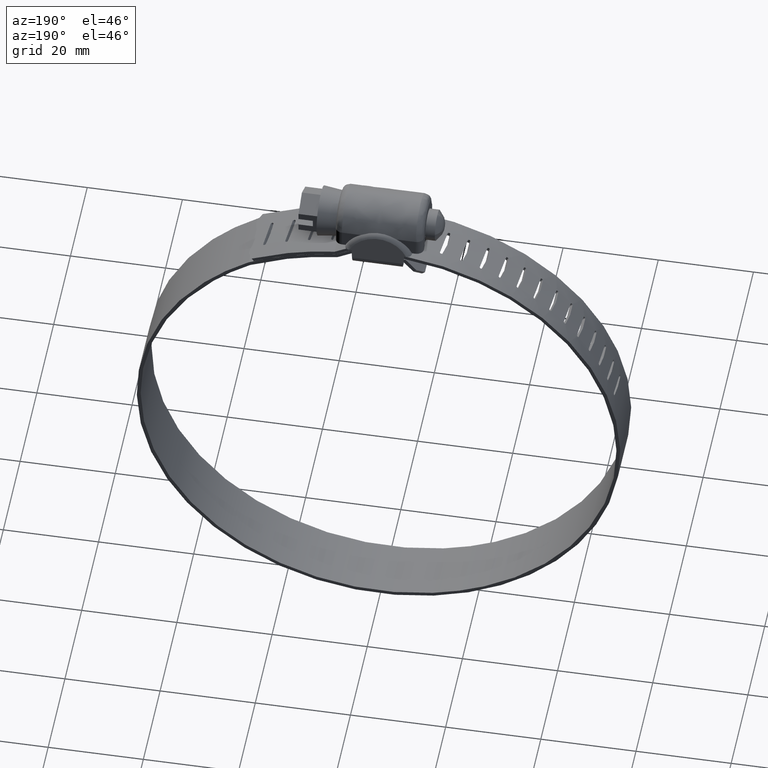
[diagram: clean part render]
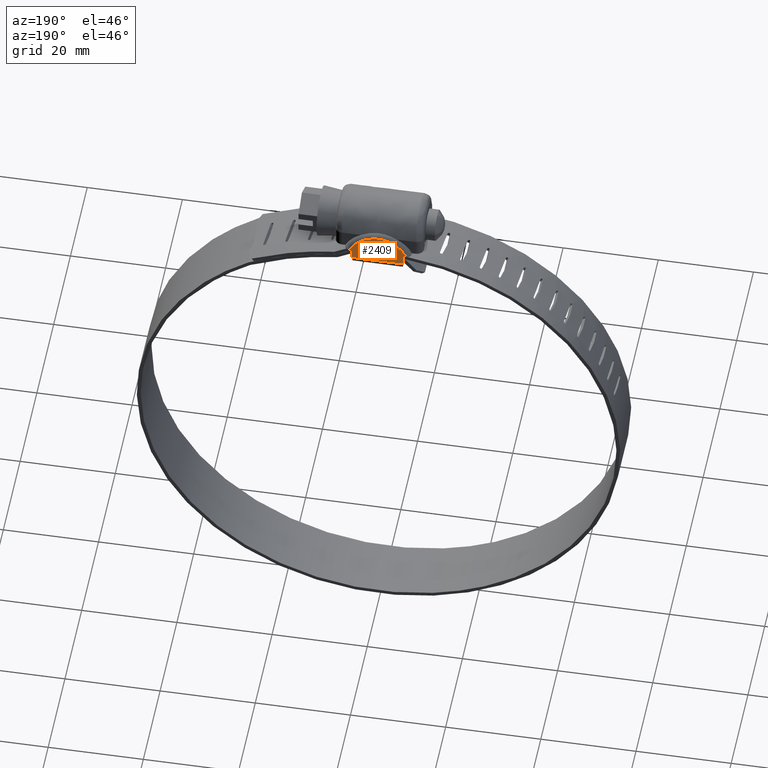
[diagram: same view with one face highlighted and labeled with its STEP entity id]
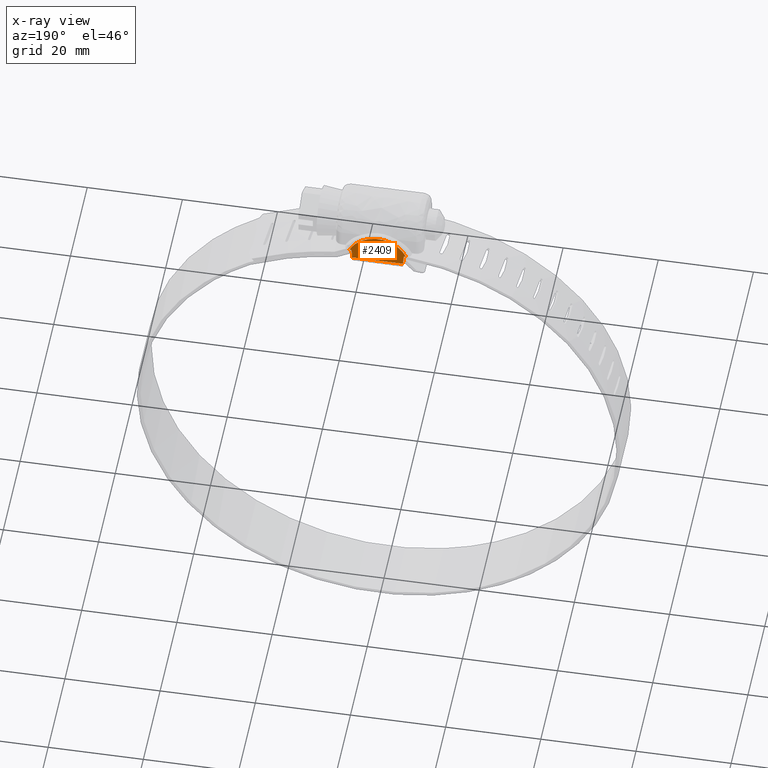
[diagram: x-ray of the same camera — body ghosted, the highlighted face saturated]
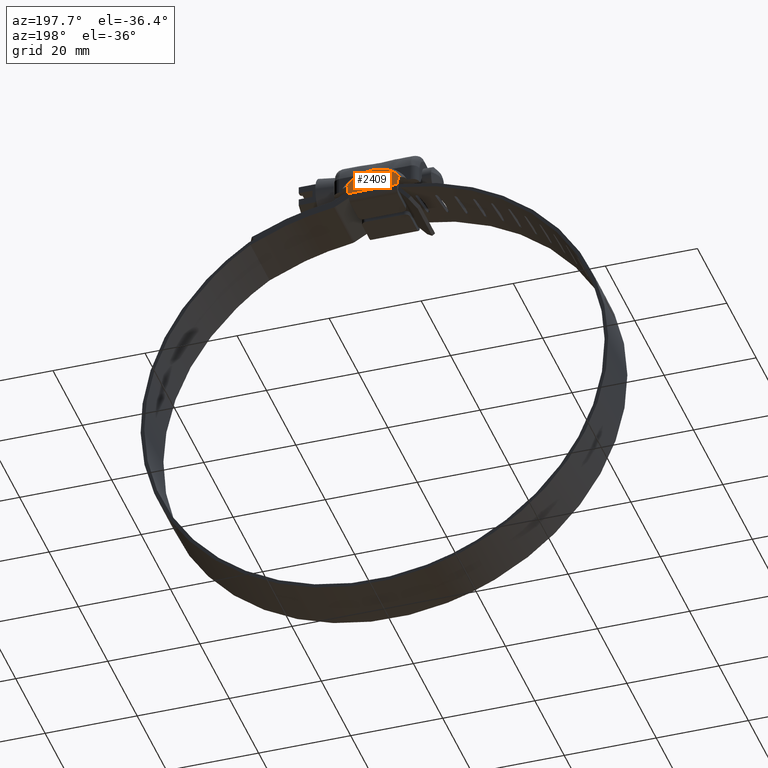
[diagram: same view with one face highlighted and labeled with its STEP entity id]
A machine part, auxiliary view. The second image highlights one B-rep face of the part: STEP entity #2409.
The next image is the same camera in x-ray: the body ghosted, the highlighted face saturated — about 0% of this face is hidden behind the body in this view.
A second angle (auxiliary view) of the same face is appended — the face is thin or edge-on in the first view.
In plain terms, the highlighted face is a freeform B-spline surface patch.
Its self-contained STEP definition (entity closure, byte-faithful):
#1443=CARTESIAN_POINT('',(-5.344276520702330,7.807549492446740,11.208401248428160));
#1444=VERTEX_POINT('',#1443);
#1459=CARTESIAN_POINT('',(5.344276520702420,7.807549492446690,11.208401248428119));
#1460=VERTEX_POINT('',#1459);
#1461=CARTESIAN_POINT('',(5.344276520702420,7.807549492446690,11.208401248428119));
#1462=CARTESIAN_POINT('',(-5.344276520702330,7.807549492446740,11.208401248428160));
#1463=QUASI_UNIFORM_CURVE('',1,(#1461,#1462),.UNSPECIFIED.,.F.,.U.);
#1464=EDGE_CURVE('',#1460,#1444,#1463,.T.);
#1840=CARTESIAN_POINT('',(5.964274546191691,7.515887096035680,13.077083000000201));
#1841=VERTEX_POINT('',#1840);
#1867=CARTESIAN_POINT('',(-5.964274546191691,7.515887096035680,13.077083000000201));
#1868=VERTEX_POINT('',#1867);
#1869=CARTESIAN_POINT('',(-5.964274546191691,7.515887096035680,13.077083000000201));
#1870=CARTESIAN_POINT('',(-4.101574888512248,6.945540499392355,16.731295165618835));
#1871=CARTESIAN_POINT('',(2.153124E-015,6.945540499392355,16.731295165618839));
#1872=CARTESIAN_POINT('',(4.101574888512252,6.945540499392355,16.731295165618835));
#1873=CARTESIAN_POINT('',(5.964274546191691,7.515887096035680,13.077083000000201));
#1881=(BOUNDED_CURVE()B_SPLINE_CURVE(2,(#1869,#1870,#1871,#1872,#1873),.UNSPECIFIED.,.F.,.U.)B_SPLINE_CURVE_WITH_KNOTS((3,2,3),(0.0,0.500000000000000,1.0),.UNSPECIFIED.)CURVE()GEOMETRIC_REPRESENTATION_ITEM()RATIONAL_B_SPLINE_CURVE((1.0,0.852684743861974,1.0,0.852684743861974,1.0))REPRESENTATION_ITEM(''));
#1882=EDGE_CURVE('',#1868,#1841,#1881,.T.);
#2376=CARTESIAN_POINT('',(-6.560105438259712,6.902483235858929,17.007163167896639));
#2377=CARTESIAN_POINT('',(-6.560105438259712,7.850606794514998,10.932532999257729));
#2378=CARTESIAN_POINT('',(6.560105864857871,6.902483235858929,17.007163167896639));
#2379=CARTESIAN_POINT('',(6.560105864857871,7.850606794514998,10.932532999257729));
#2380=B_SPLINE_SURFACE_WITH_KNOTS('',1,1,((#2376,#2378),(#2377,#2379)),.UNSPECIFIED.,.F.,.F.,.U.,(2,2),(2,2),(0.0,6.148176149738776),(0.0,13.120211303117580),.UNSPECIFIED.);
#2381=CARTESIAN_POINT('',(5.500000000000100,7.515887096035680,13.077083000000201));
#2382=VERTEX_POINT('',#2381);
#2383=CARTESIAN_POINT('',(5.344276520702420,7.807549492446690,11.208401248428119));
#2384=CARTESIAN_POINT('',(5.500000000000100,7.515887096035680,13.077083000000201));
#2385=QUASI_UNIFORM_CURVE('',1,(#2383,#2384),.UNSPECIFIED.,.F.,.U.);
#2386=EDGE_CURVE('',#1460,#2382,#2385,.T.);
#2387=ORIENTED_EDGE('',*,*,#2386,.F.);
#2388=ORIENTED_EDGE('',*,*,#1464,.T.);
#2389=CARTESIAN_POINT('',(-5.500000000000000,7.515887096035680,13.077083000000201));
#2390=VERTEX_POINT('',#2389);
#2391=CARTESIAN_POINT('',(-5.500000000000000,7.515887096035680,13.077083000000201));
#2392=CARTESIAN_POINT('',(-5.344276520702330,7.807549492446740,11.208401248428160));
#2393=QUASI_UNIFORM_CURVE('',1,(#2391,#2392),.UNSPECIFIED.,.F.,.U.);
#2394=EDGE_CURVE('',#2390,#1444,#2393,.T.);
#2395=ORIENTED_EDGE('',*,*,#2394,.F.);
#2396=CARTESIAN_POINT('',(-5.964274546191691,7.515887096035680,13.077083000000201));
#2397=CARTESIAN_POINT('',(-5.500000000000000,7.515887096035680,13.077083000000201));
#2398=QUASI_UNIFORM_CURVE('',1,(#2396,#2397),.UNSPECIFIED.,.F.,.U.);
#2399=EDGE_CURVE('',#1868,#2390,#2398,.T.);
#2400=ORIENTED_EDGE('',*,*,#2399,.F.);
#2401=ORIENTED_EDGE('',*,*,#1882,.T.);
#2402=CARTESIAN_POINT('',(5.500000000000100,7.515887096035680,13.077083000000201));
#2403=CARTESIAN_POINT('',(5.964274546191691,7.515887096035680,13.077083000000201));
#2404=QUASI_UNIFORM_CURVE('',1,(#2402,#2403),.UNSPECIFIED.,.F.,.U.);
#2405=EDGE_CURVE('',#2382,#1841,#2404,.T.);
#2406=ORIENTED_EDGE('',*,*,#2405,.F.);
#2407=EDGE_LOOP('',(#2387,#2388,#2395,#2400,#2401,#2406));
#2408=FACE_OUTER_BOUND('',#2407,.T.);
#2409=ADVANCED_FACE('',(#2408),#2380,.F.);